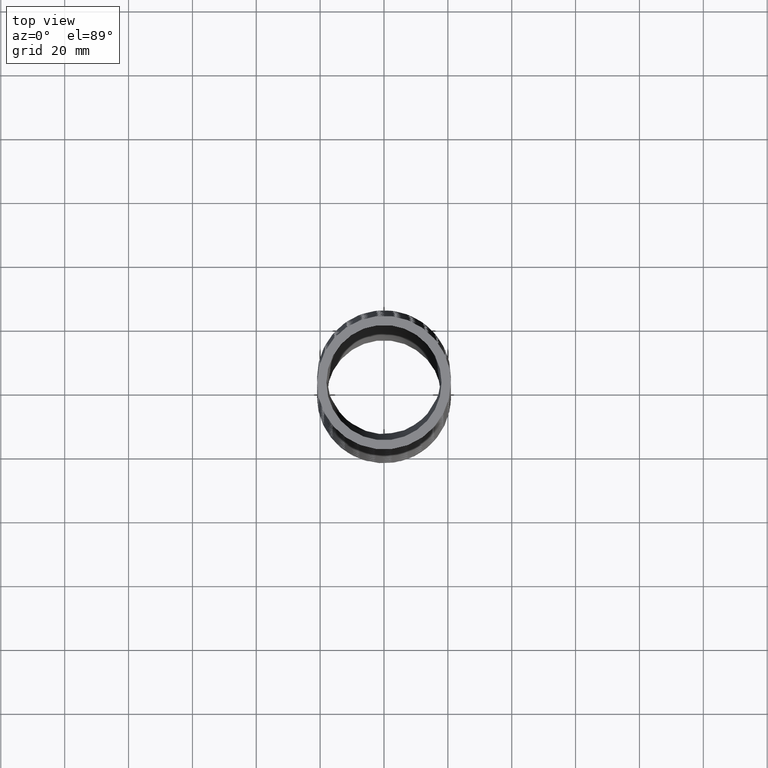
[diagram: clean part render]
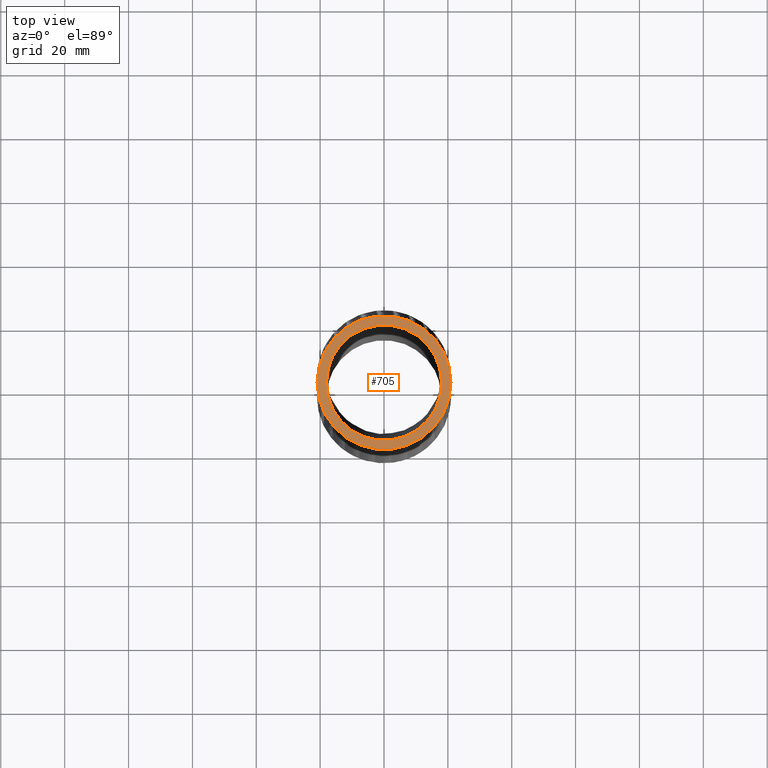
[diagram: same view with one face highlighted and labeled with its STEP entity id]
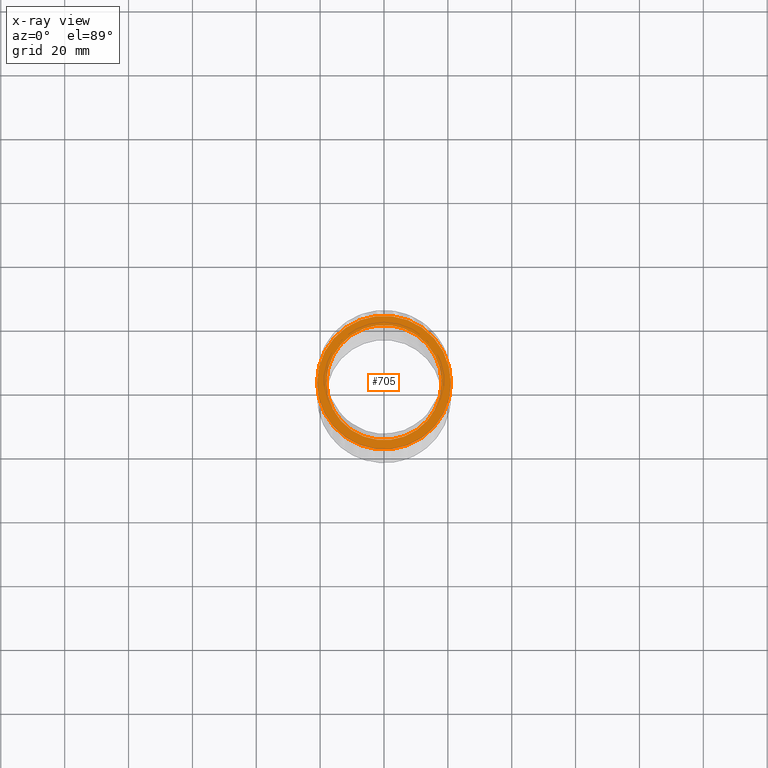
[diagram: x-ray of the same camera — body ghosted, the highlighted face saturated]
A machine part, top view. The second image highlights one B-rep face of the part: STEP entity #705.
The next image is the same camera in x-ray: the body ghosted, the highlighted face saturated — about 0% of this face is hidden behind the body in this view.
In plain terms, the highlighted planar face has unit normal (0, 0, 1).
Its self-contained STEP definition (entity closure, byte-faithful):
#639 = EDGE_CURVE ( 'NONE', #7679, #7676, #12183, .T. ) ;
#679 = ORIENTED_EDGE ( 'NONE', *, *, #7675, .T. ) ;
#681 = EDGE_LOOP ( 'NONE', ( #683, #687 ) ) ;
#682 = EDGE_CURVE ( 'NONE', #7714, #7712, #12519, .T. ) ;
#683 = ORIENTED_EDGE ( 'NONE', *, *, #7706, .F. ) ;
#685 = EDGE_LOOP ( 'NONE', ( #688, #679 ) ) ;
#687 = ORIENTED_EDGE ( 'NONE', *, *, #682, .F. ) ;
#688 = ORIENTED_EDGE ( 'NONE', *, *, #639, .T. ) ;
#705 = ADVANCED_FACE ( 'NONE', ( #12672, #12667 ), #12649, .T. ) ;
#7675 = EDGE_CURVE ( 'NONE', #7676, #7679, #14680, .T. ) ;
#7676 = VERTEX_POINT ( 'NONE', #14703 ) ;
#7679 = VERTEX_POINT ( 'NONE', #14702 ) ;
#7706 = EDGE_CURVE ( 'NONE', #7712, #7714, #14792, .T. ) ;
#7712 = VERTEX_POINT ( 'NONE', #14786 ) ;
#7714 = VERTEX_POINT ( 'NONE', #14785 ) ;
#12180 = DIRECTION ( 'NONE',  ( 1.000000000000000000, 0.0000000000000000000, 0.0000000000000000000 ) ) ;
#12181 = DIRECTION ( 'NONE',  ( 0.0000000000000000000, 0.0000000000000000000, 1.000000000000000000 ) ) ;
#12182 = AXIS2_PLACEMENT_3D ( 'NONE', #12188, #12181, #12180 ) ;
#12183 = CIRCLE ( 'NONE', #12182, 0.8249999999999999600 ) ;
#12188 = CARTESIAN_POINT ( 'NONE',  ( 0.0000000000000000000, 0.0000000000000000000, 0.0000000000000000000 ) ) ;
#12515 = DIRECTION ( 'NONE',  ( 1.000000000000000000, 0.0000000000000000000, 0.0000000000000000000 ) ) ;
#12516 = DIRECTION ( 'NONE',  ( 0.0000000000000000000, 0.0000000000000000000, 1.000000000000000000 ) ) ;
#12517 = CARTESIAN_POINT ( 'NONE',  ( 0.0000000000000000000, 0.0000000000000000000, 0.0000000000000000000 ) ) ;
#12518 = AXIS2_PLACEMENT_3D ( 'NONE', #12517, #12516, #12515 ) ;
#12519 = CIRCLE ( 'NONE', #12518, 0.7099999999999999600 ) ;
#12649 = PLANE ( 'NONE',  #12704 ) ;
#12667 = FACE_OUTER_BOUND ( 'NONE', #685, .T. ) ;
#12672 = FACE_BOUND ( 'NONE', #681, .T. ) ;
#12701 = DIRECTION ( 'NONE',  ( 1.000000000000000000, 0.0000000000000000000, 0.0000000000000000000 ) ) ;
#12702 = DIRECTION ( 'NONE',  ( 0.0000000000000000000, 0.0000000000000000000, 1.000000000000000000 ) ) ;
#12703 = CARTESIAN_POINT ( 'NONE',  ( 0.0000000000000000000, 0.0000000000000000000, 0.0000000000000000000 ) ) ;
#12704 = AXIS2_PLACEMENT_3D ( 'NONE', #12703, #12702, #12701 ) ;
#14680 = CIRCLE ( 'NONE', #14707, 0.8249999999999999600 ) ;
#14702 = CARTESIAN_POINT ( 'NONE',  ( 0.8249999999999999600, 0.0000000000000000000, 0.0000000000000000000 ) ) ;
#14703 = CARTESIAN_POINT ( 'NONE',  ( -0.8249999999999999600, 1.010333609296566300E-016, 0.0000000000000000000 ) ) ;
#14704 = DIRECTION ( 'NONE',  ( 1.000000000000000000, 0.0000000000000000000, 0.0000000000000000000 ) ) ;
#14705 = DIRECTION ( 'NONE',  ( 0.0000000000000000000, 0.0000000000000000000, 1.000000000000000000 ) ) ;
#14706 = CARTESIAN_POINT ( 'NONE',  ( 0.0000000000000000000, 0.0000000000000000000, 0.0000000000000000000 ) ) ;
#14707 = AXIS2_PLACEMENT_3D ( 'NONE', #14706, #14705, #14704 ) ;
#14785 = CARTESIAN_POINT ( 'NONE',  ( -0.7099999999999999600, 8.694992273946207000E-017, 0.0000000000000000000 ) ) ;
#14786 = CARTESIAN_POINT ( 'NONE',  ( 0.7099999999999999600, 0.0000000000000000000, 0.0000000000000000000 ) ) ;
#14788 = DIRECTION ( 'NONE',  ( 1.000000000000000000, 0.0000000000000000000, 0.0000000000000000000 ) ) ;
#14789 = DIRECTION ( 'NONE',  ( 0.0000000000000000000, 0.0000000000000000000, 1.000000000000000000 ) ) ;
#14790 = CARTESIAN_POINT ( 'NONE',  ( 0.0000000000000000000, 0.0000000000000000000, 0.0000000000000000000 ) ) ;
#14791 = AXIS2_PLACEMENT_3D ( 'NONE', #14790, #14789, #14788 ) ;
#14792 = CIRCLE ( 'NONE', #14791, 0.7099999999999999600 ) ;